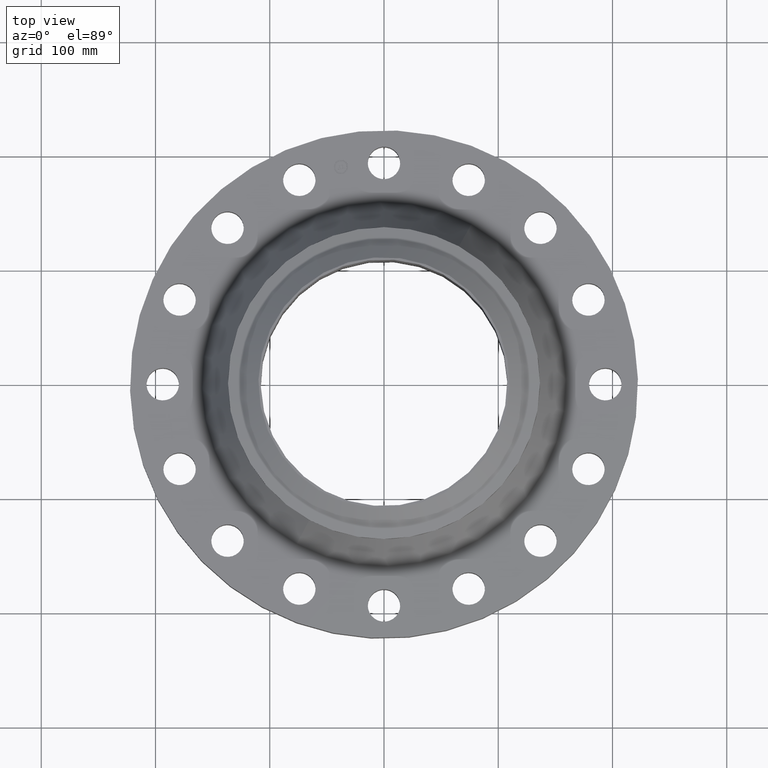
[diagram: clean part render]
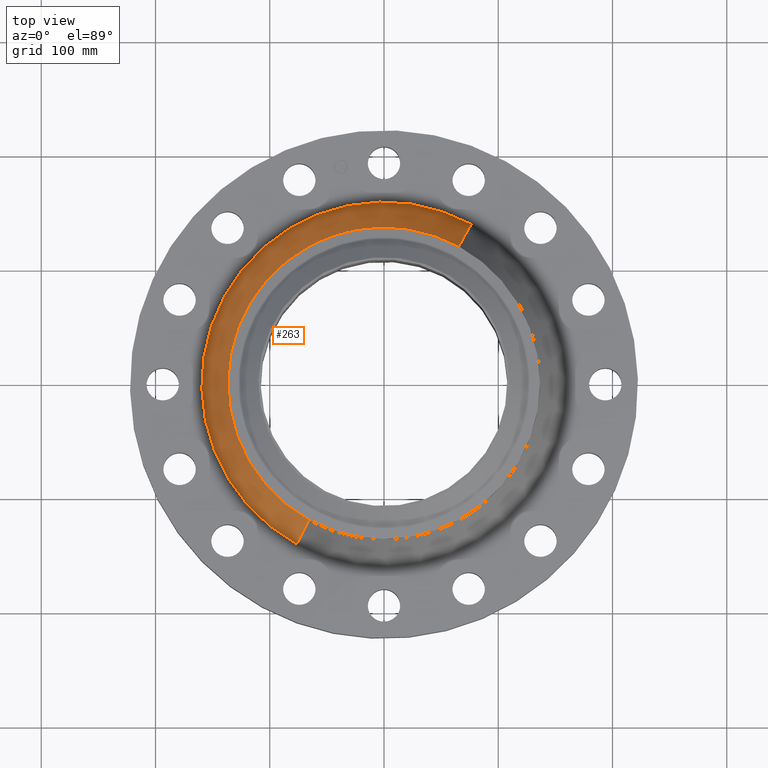
[diagram: same view with one face highlighted and labeled with its STEP entity id]
A machine part, top view. The second image highlights one B-rep face of the part: STEP entity #263.
In plain terms, the highlighted conical surface has half-angle 25.805 deg.
Its self-contained STEP definition (entity closure, byte-faithful):
#211=AXIS2_PLACEMENT_3D('Circle Axis2P3D',#209,#210,$) ;
#224=AXIS2_PLACEMENT_3D('Cone Axis2P3D',#221,#222,#223) ;
#254=AXIS2_PLACEMENT_3D('Circle Axis2P3D',#252,#253,$) ;
#182=CARTESIAN_POINT('Vertex',(3.00946681329,5.50879205063,1.87776360148)) ;
#189=CARTESIAN_POINT('Vertex',(-3.00946681329,-5.50879205063,1.87776360148)) ;
#209=CARTESIAN_POINT('Axis2P3D Location',(0.,0.,1.87776360148)) ;
#221=CARTESIAN_POINT('Axis2P3D Location',(0.,0.,3.74374450254)) ;
#226=CARTESIAN_POINT('Line Origine',(2.79318954165,5.1128991604,2.81075405201)) ;
#230=CARTESIAN_POINT('Vertex',(2.57691227001,4.71700627018,3.74374450254)) ;
#237=CARTESIAN_POINT('Vertex',(-2.57691227001,-4.71700627018,3.74374450254)) ;
#240=CARTESIAN_POINT('Line Origine',(-2.79318954165,-5.1128991604,2.81075405201)) ;
#252=CARTESIAN_POINT('Axis2P3D Location',(0.,0.,3.74374450254)) ;
#210=DIRECTION('Axis2P3D Direction',(0.,0.,-0.0393700787402)) ;
#222=DIRECTION('Axis2P3D Direction',(0.,0.,-0.0393700787402)) ;
#223=DIRECTION('Axis2P3D XDirection',(-0.0188750212049,-0.0345504945626,0.)) ;
#227=DIRECTION('Vector Direction',(0.00821635941499,0.0150399450263,-0.0354442462408)) ;
#241=DIRECTION('Vector Direction',(-0.00821635941499,-0.0150399450263,-0.0354442462408)) ;
#253=DIRECTION('Axis2P3D Direction',(0.,0.,-0.0393700787402)) ;
#228=VECTOR('Line Direction',#227,0.0393700787402) ;
#242=VECTOR('Line Direction',#241,0.0393700787402) ;
#258=ORIENTED_EDGE('',*,*,#213,.F.) ;
#259=ORIENTED_EDGE('',*,*,#244,.T.) ;
#260=ORIENTED_EDGE('',*,*,#256,.T.) ;
#261=ORIENTED_EDGE('',*,*,#232,.F.) ;
#263=ADVANCED_FACE('PartBody',(#262),#225,.T.) ;
#212=CIRCLE('generated circle',#211,6.27723508858) ;
#255=CIRCLE('generated circle',#254,5.37500000002) ;
#225=CONICAL_SURFACE('Cone',#224,5.37500000002,0.450375166443) ;
#213=EDGE_CURVE('',#190,#183,#212,.T.) ;
#232=EDGE_CURVE('',#183,#231,#229,.F.) ;
#244=EDGE_CURVE('',#190,#238,#243,.F.) ;
#256=EDGE_CURVE('',#238,#231,#255,.T.) ;
#257=EDGE_LOOP('',(#258,#259,#260,#261)) ;
#262=FACE_OUTER_BOUND('',#257,.T.) ;
#229=LINE('Line',#226,#228) ;
#243=LINE('Line',#240,#242) ;
#183=VERTEX_POINT('',#182) ;
#190=VERTEX_POINT('',#189) ;
#231=VERTEX_POINT('',#230) ;
#238=VERTEX_POINT('',#237) ;